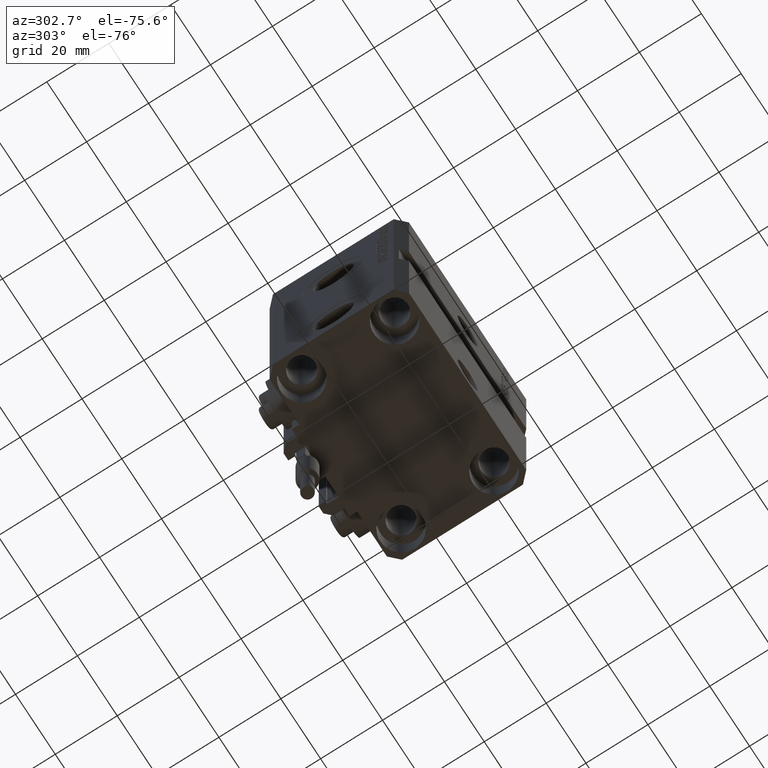
[diagram: clean part render]
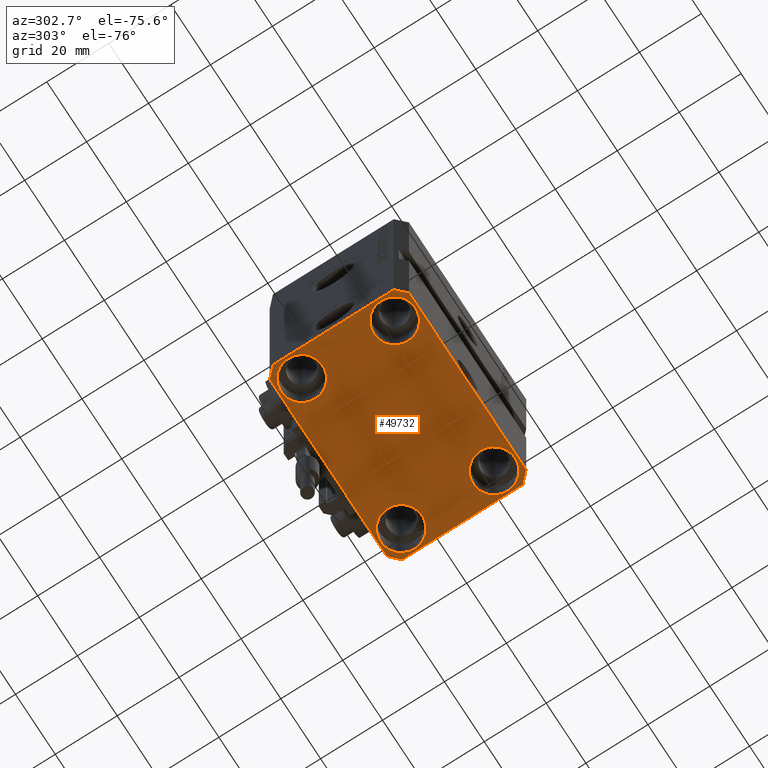
[diagram: same view with one face highlighted and labeled with its STEP entity id]
A machine part, auxiliary view. The second image highlights one B-rep face of the part: STEP entity #49732.
In plain terms, the highlighted planar face has unit normal (0, 0, 1).
Its self-contained STEP definition (entity closure, byte-faithful):
#275 = AXIS2_PLACEMENT_3D ( 'NONE', #25418, #29315, #37101 ) ;
#754 = VECTOR ( 'NONE', #31285, 1000.000000000000000 ) ;
#1399 = EDGE_CURVE ( 'NONE', #39758, #11670, #15850, .T. ) ;
#1407 = CIRCLE ( 'NONE', #8070, 6.750000000041541881 ) ;
#1727 = EDGE_CURVE ( 'NONE', #9102, #25891, #18984, .T. ) ;
#1967 = LINE ( 'NONE', #5621, #3513 ) ;
#2369 = DIRECTION ( 'NONE',  ( 1.000000000000000000, 0.000000000000000000, 0.000000000000000000 ) ) ;
#2817 = CARTESIAN_POINT ( 'NONE',  ( 18.25000000002253842, -15.00000000000000000, -77.00000000000000000 ) ) ;
#3030 = CARTESIAN_POINT ( 'NONE',  ( -31.75000000004154899, -15.00000000000000000, -77.00000000000000000 ) ) ;
#3174 = VERTEX_POINT ( 'NONE', #2817 ) ;
#3240 = DIRECTION ( 'NONE',  ( 0.000000000000000000, 0.000000000000000000, 1.000000000000000000 ) ) ;
#3243 = AXIS2_PLACEMENT_3D ( 'NONE', #15194, #3240, #35158 ) ;
#3470 = EDGE_LOOP ( 'NONE', ( #38006, #47716 ) ) ;
#3499 = PLANE ( 'NONE',  #3243 ) ;
#3513 = VECTOR ( 'NONE', #49184, 1000.000000000000000 ) ;
#3761 = CARTESIAN_POINT ( 'NONE',  ( -29.49999999999650413, -22.49999999999949907, -77.00000000000000000 ) ) ;
#3965 = DIRECTION ( 'NONE',  ( -0.000000000000000000, -0.000000000000000000, 1.000000000000000000 ) ) ;
#4187 = EDGE_LOOP ( 'NONE', ( #42310, #16201 ) ) ;
#4473 = VECTOR ( 'NONE', #48210, 1000.000000000000000 ) ;
#4975 = EDGE_CURVE ( 'NONE', #3174, #38258, #37331, .T. ) ;
#4994 = EDGE_CURVE ( 'NONE', #11670, #39758, #50580, .T. ) ;
#5120 = EDGE_CURVE ( 'NONE', #6846, #18760, #20014, .T. ) ;
#5324 = VECTOR ( 'NONE', #31242, 1000.000000000000000 ) ;
#5325 = ORIENTED_EDGE ( 'NONE', *, *, #4975, .T. ) ;
#5346 = ORIENTED_EDGE ( 'NONE', *, *, #1727, .F. ) ;
#5621 = CARTESIAN_POINT ( 'NONE',  ( 29.49999999999707967, 22.49999999999951328, -77.00000000000000000 ) ) ;
#6098 = DIRECTION ( 'NONE',  ( -0.000000000000000000, -0.000000000000000000, 1.000000000000000000 ) ) ;
#6612 = FACE_BOUND ( 'NONE', #34226, .T. ) ;
#6846 = VERTEX_POINT ( 'NONE', #11971 ) ;
#7016 = DIRECTION ( 'NONE',  ( 1.000000000000000000, 0.000000000000000000, 0.000000000000000000 ) ) ;
#7356 = CARTESIAN_POINT ( 'NONE',  ( 32.49999999999651124, -19.49999999999949196, -77.00000000000000000 ) ) ;
#8070 = AXIS2_PLACEMENT_3D ( 'NONE', #48669, #29219, #40904 ) ;
#8381 = AXIS2_PLACEMENT_3D ( 'NONE', #42319, #18455, #7016 ) ;
#8681 = CARTESIAN_POINT ( 'NONE',  ( -29.49999999999650413, 22.49999999999949907, -77.00000000000000000 ) ) ;
#8770 = VECTOR ( 'NONE', #25937, 1000.000000000000114 ) ;
#9102 = VERTEX_POINT ( 'NONE', #35357 ) ;
#10118 = VERTEX_POINT ( 'NONE', #8681 ) ;
#11237 = CARTESIAN_POINT ( 'NONE',  ( 25.00000000000000355, -15.00000000000000000, -77.00000000000000000 ) ) ;
#11277 = EDGE_CURVE ( 'NONE', #24044, #10118, #1967, .T. ) ;
#11498 = DIRECTION ( 'NONE',  ( 1.000000000000000000, 0.000000000000000000, 0.000000000000000000 ) ) ;
#11670 = VERTEX_POINT ( 'NONE', #22406 ) ;
#11770 = LINE ( 'NONE', #7356, #5324 ) ;
#11971 = CARTESIAN_POINT ( 'NONE',  ( 18.25000000004154543, 15.00000000000000888, -77.00000000000000000 ) ) ;
#12900 = AXIS2_PLACEMENT_3D ( 'NONE', #30753, #6098, #21937 ) ;
#12951 = LINE ( 'NONE', #47954, #4473 ) ;
#13075 = VERTEX_POINT ( 'NONE', #23255 ) ;
#13092 = VERTEX_POINT ( 'NONE', #31053 ) ;
#13319 = CARTESIAN_POINT ( 'NONE',  ( -32.49999999999650413, 19.49999999999949907, -77.00000000000000000 ) ) ;
#14156 = ORIENTED_EDGE ( 'NONE', *, *, #37076, .F. ) ;
#14434 = FACE_BOUND ( 'NONE', #4187, .T. ) ;
#14986 = AXIS2_PLACEMENT_3D ( 'NONE', #11237, #3965, #42892 ) ;
#15194 = CARTESIAN_POINT ( 'NONE',  ( 0.000000000000000000, 0.000000000000000000, -77.00000000000000000 ) ) ;
#15764 = EDGE_CURVE ( 'NONE', #22302, #9102, #12951, .T. ) ;
#15850 = CIRCLE ( 'NONE', #34872, 6.750000000022533087 ) ;
#16201 = ORIENTED_EDGE ( 'NONE', *, *, #38142, .T. ) ;
#16461 = CARTESIAN_POINT ( 'NONE',  ( -29.49999999999650413, 22.49999999999949907, -77.00000000000000000 ) ) ;
#17968 = DIRECTION ( 'NONE',  ( -0.000000000000000000, -0.000000000000000000, 1.000000000000000000 ) ) ;
#18455 = DIRECTION ( 'NONE',  ( -0.000000000000000000, -0.000000000000000000, 1.000000000000000000 ) ) ;
#18760 = VERTEX_POINT ( 'NONE', #23011 ) ;
#18984 = LINE ( 'NONE', #46463, #29894 ) ;
#19194 = EDGE_CURVE ( 'NONE', #10118, #22302, #29579, .T. ) ;
#20014 = CIRCLE ( 'NONE', #8381, 6.749999999958452790 ) ;
#21339 = CARTESIAN_POINT ( 'NONE',  ( -25.00000000000000355, 15.00000000000000000, -77.00000000000000000 ) ) ;
#21937 = DIRECTION ( 'NONE',  ( 1.000000000000000000, 0.000000000000000000, 0.000000000000000000 ) ) ;
#22302 = VERTEX_POINT ( 'NONE', #13319 ) ;
#22396 = EDGE_CURVE ( 'NONE', #39738, #25429, #46662, .T. ) ;
#22406 = CARTESIAN_POINT ( 'NONE',  ( -31.75000000002253842, 15.00000000000000000, -77.00000000000000000 ) ) ;
#22450 = FACE_BOUND ( 'NONE', #37054, .T. ) ;
#23011 = CARTESIAN_POINT ( 'NONE',  ( 31.74999999995845101, 15.00000000000000888, -77.00000000000000000 ) ) ;
#23255 = CARTESIAN_POINT ( 'NONE',  ( 32.49999999999702993, 19.49999999999945999, -77.00000000000000000 ) ) ;
#24044 = VERTEX_POINT ( 'NONE', #30481 ) ;
#24480 = AXIS2_PLACEMENT_3D ( 'NONE', #28932, #17968, #2369 ) ;
#24735 = LINE ( 'NONE', #36666, #31344 ) ;
#25418 = CARTESIAN_POINT ( 'NONE',  ( -25.00000000000000355, -15.00000000000000000, -77.00000000000000000 ) ) ;
#25429 = VERTEX_POINT ( 'NONE', #28450 ) ;
#25891 = VERTEX_POINT ( 'NONE', #36054 ) ;
#25937 = DIRECTION ( 'NONE',  ( -0.7071067811865474617, -0.7071067811865474617, 0.000000000000000000 ) ) ;
#26893 = ORIENTED_EDGE ( 'NONE', *, *, #1399, .T. ) ;
#27405 = ORIENTED_EDGE ( 'NONE', *, *, #19194, .F. ) ;
#27730 = CARTESIAN_POINT ( 'NONE',  ( 29.49999999999650413, -22.49999999999949196, -77.00000000000000000 ) ) ;
#28223 = AXIS2_PLACEMENT_3D ( 'NONE', #47281, #50904, #11498 ) ;
#28250 = EDGE_CURVE ( 'NONE', #25891, #39738, #31027, .T. ) ;
#28450 = CARTESIAN_POINT ( 'NONE',  ( 32.49999999999651124, -19.49999999999949196, -77.00000000000000000 ) ) ;
#28932 = CARTESIAN_POINT ( 'NONE',  ( 24.99999999999999645, 15.00000000000000888, -77.00000000000000000 ) ) ;
#29219 = DIRECTION ( 'NONE',  ( -0.000000000000000000, -0.000000000000000000, 1.000000000000000000 ) ) ;
#29315 = DIRECTION ( 'NONE',  ( -0.000000000000000000, -0.000000000000000000, 1.000000000000000000 ) ) ;
#29579 = LINE ( 'NONE', #16461, #8770 ) ;
#29894 = VECTOR ( 'NONE', #39206, 1000.000000000000114 ) ;
#30481 = CARTESIAN_POINT ( 'NONE',  ( 29.49999999999707967, 22.49999999999951328, -77.00000000000000000 ) ) ;
#30753 = CARTESIAN_POINT ( 'NONE',  ( 25.00000000000000355, -15.00000000000000000, -77.00000000000000000 ) ) ;
#31027 = LINE ( 'NONE', #3761, #754 ) ;
#31053 = CARTESIAN_POINT ( 'NONE',  ( -18.24999999995845812, -15.00000000000000000, -77.00000000000000000 ) ) ;
#31070 = ORIENTED_EDGE ( 'NONE', *, *, #28250, .F. ) ;
#31242 = DIRECTION ( 'NONE',  ( 1.334402673828349134E-14, 1.000000000000000000, 0.000000000000000000 ) ) ;
#31285 = DIRECTION ( 'NONE',  ( 1.000000000000000000, 1.176083712526788232E-16, 0.000000000000000000 ) ) ;
#31344 = VECTOR ( 'NONE', #40568, 1000.000000000000000 ) ;
#31601 = EDGE_CURVE ( 'NONE', #13092, #32716, #43375, .T. ) ;
#32577 = ORIENTED_EDGE ( 'NONE', *, *, #22396, .F. ) ;
#32716 = VERTEX_POINT ( 'NONE', #3030 ) ;
#32825 = CARTESIAN_POINT ( 'NONE',  ( 31.74999999997746869, -15.00000000000000000, -77.00000000000000000 ) ) ;
#32953 = ORIENTED_EDGE ( 'NONE', *, *, #39754, .T. ) ;
#33662 = ORIENTED_EDGE ( 'NONE', *, *, #44905, .F. ) ;
#34226 = EDGE_LOOP ( 'NONE', ( #5325, #32953 ) ) ;
#34872 = AXIS2_PLACEMENT_3D ( 'NONE', #21339, #37153, #36644 ) ;
#35158 = DIRECTION ( 'NONE',  ( 1.000000000000000000, 0.000000000000000000, -0.000000000000000000 ) ) ;
#35357 = CARTESIAN_POINT ( 'NONE',  ( -32.49999999999650413, -19.49999999999949907, -77.00000000000000000 ) ) ;
#35801 = ORIENTED_EDGE ( 'NONE', *, *, #4994, .T. ) ;
#36054 = CARTESIAN_POINT ( 'NONE',  ( -29.49999999999650413, -22.49999999999949907, -77.00000000000000000 ) ) ;
#36644 = DIRECTION ( 'NONE',  ( 1.000000000000000000, 0.000000000000000000, 0.000000000000000000 ) ) ;
#36666 = CARTESIAN_POINT ( 'NONE',  ( 32.49999999999702993, 19.49999999999945999, -77.00000000000000000 ) ) ;
#37054 = EDGE_LOOP ( 'NONE', ( #35801, #26893 ) ) ;
#37076 = EDGE_CURVE ( 'NONE', #25429, #13075, #11770, .T. ) ;
#37101 = DIRECTION ( 'NONE',  ( 1.000000000000000000, 0.000000000000000000, 0.000000000000000000 ) ) ;
#37153 = DIRECTION ( 'NONE',  ( -0.000000000000000000, -0.000000000000000000, 1.000000000000000000 ) ) ;
#37331 = CIRCLE ( 'NONE', #14986, 6.749999999977465137 ) ;
#37770 = CIRCLE ( 'NONE', #12900, 6.749999999977465137 ) ;
#38006 = ORIENTED_EDGE ( 'NONE', *, *, #43308, .T. ) ;
#38142 = EDGE_CURVE ( 'NONE', #18760, #6846, #40994, .T. ) ;
#38258 = VERTEX_POINT ( 'NONE', #32825 ) ;
#38537 = FACE_OUTER_BOUND ( 'NONE', #48501, .T. ) ;
#39206 = DIRECTION ( 'NONE',  ( 0.7071067811865474617, -0.7071067811865474617, 0.000000000000000000 ) ) ;
#39738 = VERTEX_POINT ( 'NONE', #41654 ) ;
#39754 = EDGE_CURVE ( 'NONE', #38258, #3174, #37770, .T. ) ;
#39758 = VERTEX_POINT ( 'NONE', #46560 ) ;
#40568 = DIRECTION ( 'NONE',  ( -0.7071067811865352493, 0.7071067811865597852, 0.000000000000000000 ) ) ;
#40904 = DIRECTION ( 'NONE',  ( 1.000000000000000000, 0.000000000000000000, 0.000000000000000000 ) ) ;
#40994 = CIRCLE ( 'NONE', #24480, 6.749999999958452790 ) ;
#41654 = CARTESIAN_POINT ( 'NONE',  ( 29.49999999999650413, -22.49999999999949196, -77.00000000000000000 ) ) ;
#42027 = VECTOR ( 'NONE', #47424, 1000.000000000000000 ) ;
#42167 = FACE_BOUND ( 'NONE', #3470, .T. ) ;
#42310 = ORIENTED_EDGE ( 'NONE', *, *, #5120, .T. ) ;
#42319 = CARTESIAN_POINT ( 'NONE',  ( 24.99999999999999645, 15.00000000000000888, -77.00000000000000000 ) ) ;
#42892 = DIRECTION ( 'NONE',  ( 1.000000000000000000, 0.000000000000000000, 0.000000000000000000 ) ) ;
#43308 = EDGE_CURVE ( 'NONE', #32716, #13092, #1407, .T. ) ;
#43375 = CIRCLE ( 'NONE', #275, 6.750000000041541881 ) ;
#44905 = EDGE_CURVE ( 'NONE', #13075, #24044, #24735, .T. ) ;
#46463 = CARTESIAN_POINT ( 'NONE',  ( -32.49999999999650413, -19.49999999999949907, -77.00000000000000000 ) ) ;
#46560 = CARTESIAN_POINT ( 'NONE',  ( -18.24999999997747224, 15.00000000000000000, -77.00000000000000000 ) ) ;
#46662 = LINE ( 'NONE', #27730, #42027 ) ;
#47281 = CARTESIAN_POINT ( 'NONE',  ( -25.00000000000000355, 15.00000000000000000, -77.00000000000000000 ) ) ;
#47424 = DIRECTION ( 'NONE',  ( 0.7071067811865483499, 0.7071067811865466846, 0.000000000000000000 ) ) ;
#47716 = ORIENTED_EDGE ( 'NONE', *, *, #31601, .T. ) ;
#47954 = CARTESIAN_POINT ( 'NONE',  ( -32.49999999999650413, 19.49999999999949907, -77.00000000000000000 ) ) ;
#48210 = DIRECTION ( 'NONE',  ( 0.000000000000000000, -1.000000000000000000, 0.000000000000000000 ) ) ;
#48501 = EDGE_LOOP ( 'NONE', ( #50805, #33662, #14156, #32577, #31070, #5346, #50487, #27405 ) ) ;
#48669 = CARTESIAN_POINT ( 'NONE',  ( -25.00000000000000355, -15.00000000000000000, -77.00000000000000000 ) ) ;
#49184 = DIRECTION ( 'NONE',  ( -1.000000000000000000, -2.352167425053553784E-16, 0.000000000000000000 ) ) ;
#49732 = ADVANCED_FACE ( 'NONE', ( #42167, #6612, #14434, #22450, #38537 ), #3499, .F. ) ;
#50487 = ORIENTED_EDGE ( 'NONE', *, *, #15764, .F. ) ;
#50580 = CIRCLE ( 'NONE', #28223, 6.750000000022533087 ) ;
#50805 = ORIENTED_EDGE ( 'NONE', *, *, #11277, .F. ) ;
#50904 = DIRECTION ( 'NONE',  ( -0.000000000000000000, -0.000000000000000000, 1.000000000000000000 ) ) ;